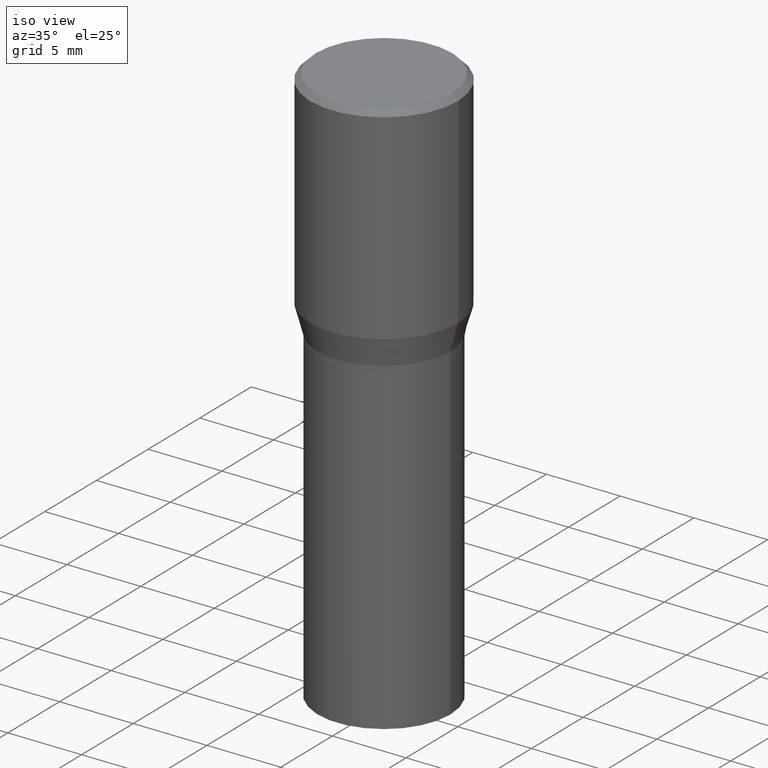
[diagram: clean part render]
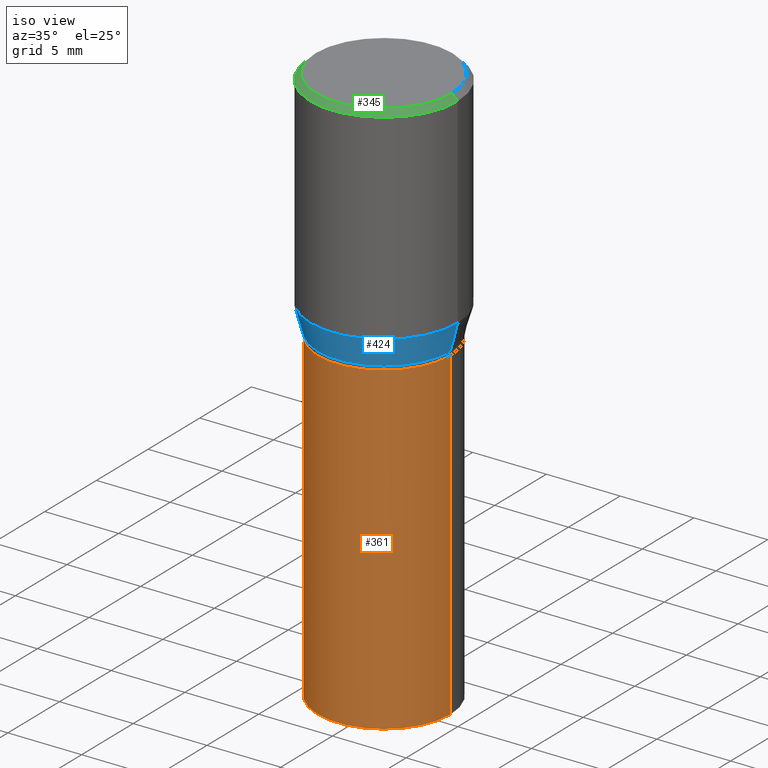
[diagram: same view with three faces highlighted in distinct colors, each labeled with its STEP entity id]
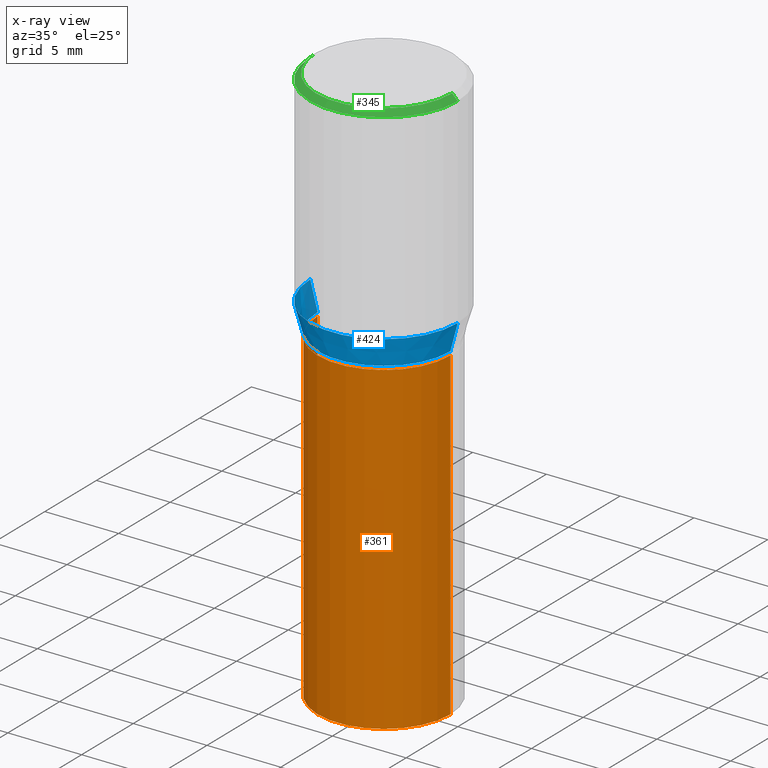
[diagram: x-ray of the same camera — body ghosted, the three highlighted faces saturated]
A machine part, iso view with three faces highlighted in distinct colors.
The next image is the same camera in x-ray (body ghosted, the three faces saturated) — at least one of them is partly hidden behind the body in this view.
Their STEP definitions:

[orange] entity #361 — the highlighted cylindrical surface (partial cylindrical patch) has radius 4.4996 mm, axis along (-0, 0, 1).
#10 = CARTESIAN_POINT ( 'NONE',  ( 0.000000000000000000, 0.000000000000000000, 0.000000000000000000 ) ) ;
#12 = ORIENTED_EDGE ( 'NONE', *, *, #145, .T. ) ;
#14 = DIRECTION ( 'NONE',  ( -2.445468806185136597E-29, 3.491481338843145583E-15, 1.000000000000000000 ) ) ;
#33 = EDGE_CURVE ( 'NONE', #161, #463, #259, .T. ) ;
#47 = CARTESIAN_POINT ( 'NONE',  ( 0.1771500000000000019, -6.474253846616840571E-15, -1.500000000000000222 ) ) ;
#56 = VERTEX_POINT ( 'NONE', #233 ) ;
#63 = LINE ( 'NONE', #318, #301 ) ;
#75 = AXIS2_PLACEMENT_3D ( 'NONE', #305, #271, #245 ) ;
#82 = LINE ( 'NONE', #193, #396 ) ;
#88 = DIRECTION ( 'NONE',  ( 1.000000000000000000, -6.982962677686266711E-15, 0.000000000000000000 ) ) ;
#94 = CYLINDRICAL_SURFACE ( 'NONE', #454, 0.1771500000000000019 ) ;
#120 = DIRECTION ( 'NONE',  ( -2.445468806185136877E-29, 3.491481338843145188E-15, 1.000000000000000000 ) ) ;
#125 = EDGE_LOOP ( 'NONE', ( #466, #263, #12, #428 ) ) ;
#139 = DIRECTION ( 'NONE',  ( -2.445468806185136877E-29, 3.491481338843145188E-15, 1.000000000000000000 ) ) ;
#145 = EDGE_CURVE ( 'NONE', #463, #341, #82, .T. ) ;
#159 = DIRECTION ( 'NONE',  ( -2.445468806185136597E-29, 3.491481338843145583E-15, 1.000000000000000000 ) ) ;
#161 = VERTEX_POINT ( 'NONE', #199 ) ;
#193 = CARTESIAN_POINT ( 'NONE',  ( 0.1771500000000000019, -1.237031838352122197E-15, 8.638147158322499960E-30 ) ) ;
#198 = CARTESIAN_POINT ( 'NONE',  ( 1.550182676240758652E-29, -2.213250020692670577E-15, -0.6339000000000001300 ) ) ;
#199 = CARTESIAN_POINT ( 'NONE',  ( -0.1771500000000000019, -2.466509558079677081E-15, -1.500000000000000222 ) ) ;
#233 = CARTESIAN_POINT ( 'NONE',  ( -0.1771500000000000019, -2.466509558079677081E-15, -0.6339000000000001300 ) ) ;
#245 = DIRECTION ( 'NONE',  ( 1.000000000000000000, -6.982962677686266711E-15, 0.000000000000000000 ) ) ;
#259 = CIRCLE ( 'NONE', #75, 0.1771500000000000019 ) ;
#263 = ORIENTED_EDGE ( 'NONE', *, *, #33, .T. ) ;
#267 = CIRCLE ( 'NONE', #377, 0.1771500000000000019 ) ;
#271 = DIRECTION ( 'NONE',  ( -2.445468806185136597E-29, 3.491481338843145583E-15, 1.000000000000000000 ) ) ;
#272 = EDGE_CURVE ( 'NONE', #161, #56, #63, .T. ) ;
#301 = VECTOR ( 'NONE', #139, 39.37007874015748143 ) ;
#305 = CARTESIAN_POINT ( 'NONE',  ( 3.668203209277704895E-29, -5.237222008264718177E-15, -1.500000000000000222 ) ) ;
#307 = DIRECTION ( 'NONE',  ( 1.000000000000000000, -6.982962677686266711E-15, 4.876176775795935793E-29 ) ) ;
#308 = EDGE_CURVE ( 'NONE', #56, #341, #267, .T. ) ;
#318 = CARTESIAN_POINT ( 'NONE',  ( -0.1771500000000000019, 1.258726456399017493E-15, -8.713893512386565325E-30 ) ) ;
#341 = VERTEX_POINT ( 'NONE', #353 ) ;
#346 = FACE_OUTER_BOUND ( 'NONE', #125, .T. ) ;
#353 = CARTESIAN_POINT ( 'NONE',  ( 0.1771500000000000019, -3.450281859044792971E-15, -0.6339000000000001300 ) ) ;
#361 = ADVANCED_FACE ( 'NONE', ( #346 ), #94, .T. ) ;
#377 = AXIS2_PLACEMENT_3D ( 'NONE', #198, #14, #88 ) ;
#396 = VECTOR ( 'NONE', #120, 39.37007874015748143 ) ;
#428 = ORIENTED_EDGE ( 'NONE', *, *, #308, .F. ) ;
#454 = AXIS2_PLACEMENT_3D ( 'NONE', #10, #159, #307 ) ;
#463 = VERTEX_POINT ( 'NONE', #47 ) ;
#466 = ORIENTED_EDGE ( 'NONE', *, *, #272, .F. ) ;

[blue] entity #424 — the highlighted conical surface has half-angle 15 deg.
#18 = DIRECTION ( 'NONE',  ( -2.445468806185136597E-29, 3.491481338843145583E-15, 1.000000000000000000 ) ) ;
#27 = LINE ( 'NONE', #457, #438 ) ;
#39 = CARTESIAN_POINT ( 'NONE',  ( 0.1771500000000001129, -3.415367045656361716E-15, -0.6239000000000001211 ) ) ;
#49 = ORIENTED_EDGE ( 'NONE', *, *, #192, .T. ) ;
#62 = ORIENTED_EDGE ( 'NONE', *, *, #427, .F. ) ;
#66 = DIRECTION ( 'NONE',  ( 0.2588190451025220717, 1.565188264969615854E-15, 0.9659258262890678681 ) ) ;
#67 = AXIS2_PLACEMENT_3D ( 'NONE', #302, #439, #124 ) ;
#73 = CARTESIAN_POINT ( 'NONE',  ( 1.525727988178907107E-29, -2.178335207304238928E-15, -0.6239000000000001211 ) ) ;
#80 = CONICAL_SURFACE ( 'NONE', #431, 0.1771500000000001129, 0.2617993877991508511 ) ;
#96 = LINE ( 'NONE', #415, #122 ) ;
#122 = VECTOR ( 'NONE', #66, 39.37007874015748854 ) ;
#124 = DIRECTION ( 'NONE',  ( 1.000000000000000000, -6.982962677686267499E-15, 0.000000000000000000 ) ) ;
#128 = ORIENTED_EDGE ( 'NONE', *, *, #395, .T. ) ;
#137 = DIRECTION ( 'NONE',  ( 1.000000000000000000, -6.982962677686265922E-15, 0.000000000000000000 ) ) ;
#143 = DIRECTION ( 'NONE',  ( -0.2588190451025220717, 5.211531920934554197E-15, 0.9659258262890678681 ) ) ;
#167 = EDGE_CURVE ( 'NONE', #348, #449, #461, .T. ) ;
#174 = DIRECTION ( 'NONE',  ( 1.000000000000000000, -6.982962677686265922E-15, 0.000000000000000000 ) ) ;
#186 = VERTEX_POINT ( 'NONE', #39 ) ;
#187 = CARTESIAN_POINT ( 'NONE',  ( 1.525727988178907107E-29, -2.178335207304238928E-15, -0.6239000000000001211 ) ) ;
#189 = CIRCLE ( 'NONE', #235, 0.1771500000000001129 ) ;
#192 = EDGE_CURVE ( 'NONE', #407, #186, #189, .T. ) ;
#235 = AXIS2_PLACEMENT_3D ( 'NONE', #187, #315, #137 ) ;
#242 = FACE_OUTER_BOUND ( 'NONE', #414, .T. ) ;
#293 = CARTESIAN_POINT ( 'NONE',  ( 0.1968500000000000527, -3.296232811127031185E-15, -0.5503785990908939274 ) ) ;
#302 = CARTESIAN_POINT ( 'NONE',  ( 1.345933695668656235E-29, -1.921636608024489183E-15, -0.5503785990908939274 ) ) ;
#315 = DIRECTION ( 'NONE',  ( -2.445468806185136597E-29, 3.491481338843145583E-15, 1.000000000000000000 ) ) ;
#348 = VERTEX_POINT ( 'NONE', #378 ) ;
#354 = ORIENTED_EDGE ( 'NONE', *, *, #167, .F. ) ;
#378 = CARTESIAN_POINT ( 'NONE',  ( -0.1968500000000000527, -5.229332326807317894E-16, -0.5503785990908939274 ) ) ;
#390 = CARTESIAN_POINT ( 'NONE',  ( -0.1771500000000001129, -7.212709917929761191E-16, -0.6239000000000001211 ) ) ;
#395 = EDGE_CURVE ( 'NONE', #186, #449, #96, .T. ) ;
#407 = VERTEX_POINT ( 'NONE', #390 ) ;
#414 = EDGE_LOOP ( 'NONE', ( #62, #49, #128, #354 ) ) ;
#415 = CARTESIAN_POINT ( 'NONE',  ( 0.1771500000000001129, -3.415367045656361716E-15, -0.6239000000000001211 ) ) ;
#424 = ADVANCED_FACE ( 'NONE', ( #242 ), #80, .T. ) ;
#427 = EDGE_CURVE ( 'NONE', #407, #348, #27, .T. ) ;
#431 = AXIS2_PLACEMENT_3D ( 'NONE', #73, #18, #174 ) ;
#438 = VECTOR ( 'NONE', #143, 39.37007874015748854 ) ;
#439 = DIRECTION ( 'NONE',  ( -2.445468806185136597E-29, 3.491481338843145583E-15, 1.000000000000000000 ) ) ;
#449 = VERTEX_POINT ( 'NONE', #293 ) ;
#457 = CARTESIAN_POINT ( 'NONE',  ( -0.1771500000000001129, -9.196087509052206461E-16, -0.6239000000000001211 ) ) ;
#461 = CIRCLE ( 'NONE', #67, 0.1968500000000000527 ) ;

[green] entity #345 — the highlighted conical surface has half-angle 45 deg.
#6 = ORIENTED_EDGE ( 'NONE', *, *, #158, .T. ) ;
#21 = CARTESIAN_POINT ( 'NONE',  ( 3.668203209277705088E-31, -5.237222008264718399E-17, -0.01499999999999999944 ) ) ;
#32 = LINE ( 'NONE', #180, #52 ) ;
#52 = VECTOR ( 'NONE', #223, 39.37007874015748143 ) ;
#60 = DIRECTION ( 'NONE',  ( -0.7071067811865479058, 2.468850131082261005E-15, -0.7071067811865471286 ) ) ;
#64 = EDGE_CURVE ( 'NONE', #324, #316, #32, .T. ) ;
#70 = CARTESIAN_POINT ( 'NONE',  ( -0.1818500000000000116, 1.296037872978570989E-15, -6.472253288878428014E-18 ) ) ;
#89 = EDGE_LOOP ( 'NONE', ( #275, #209, #134, #6 ) ) ;
#99 = CARTESIAN_POINT ( 'NONE',  ( 0.1818500000000000116, -1.325221405919363357E-15, -6.472253288860382051E-18 ) ) ;
#100 = CARTESIAN_POINT ( 'NONE',  ( 1.582769352365941312E-46, -2.259775157835388046E-32, -6.472253288869456262E-18 ) ) ;
#113 = VECTOR ( 'NONE', #60, 39.37007874015748143 ) ;
#132 = CARTESIAN_POINT ( 'NONE',  ( -0.1968500000000000250, 4.116989612901891144E-16, -0.01499999999999999944 ) ) ;
#134 = ORIENTED_EDGE ( 'NONE', *, *, #333, .T. ) ;
#156 = DIRECTION ( 'NONE',  ( 1.000000000000000000, -6.982962677686265922E-15, 0.000000000000000000 ) ) ;
#158 = EDGE_CURVE ( 'NONE', #261, #316, #331, .T. ) ;
#180 = CARTESIAN_POINT ( 'NONE',  ( 0.1968500000000000250, -1.402861250943973297E-15, -0.01499999999999999944 ) ) ;
#200 = CONICAL_SURFACE ( 'NONE', #332, 0.1968500000000000250, 0.7853981633974488341 ) ;
#209 = ORIENTED_EDGE ( 'NONE', *, *, #254, .F. ) ;
#212 = AXIS2_PLACEMENT_3D ( 'NONE', #268, #236, #156 ) ;
#223 = DIRECTION ( 'NONE',  ( 0.7071067811865479058, -7.319954787623257623E-15, -0.7071067811865471286 ) ) ;
#226 = AXIS2_PLACEMENT_3D ( 'NONE', #100, #442, #274 ) ;
#234 = DIRECTION ( 'NONE',  ( -1.000000000000000000, 6.982962677686265922E-15, 0.000000000000000000 ) ) ;
#236 = DIRECTION ( 'NONE',  ( -2.445468806185136597E-29, 3.491481338843145583E-15, 1.000000000000000000 ) ) ;
#247 = CARTESIAN_POINT ( 'NONE',  ( -0.1968500000000000250, 1.322223983019894529E-15, -0.01499999999999999944 ) ) ;
#254 = EDGE_CURVE ( 'NONE', #411, #324, #363, .T. ) ;
#261 = VERTEX_POINT ( 'NONE', #132 ) ;
#268 = CARTESIAN_POINT ( 'NONE',  ( 3.668203209277705088E-31, -5.237222008264718399E-17, -0.01499999999999999944 ) ) ;
#273 = LINE ( 'NONE', #247, #113 ) ;
#274 = DIRECTION ( 'NONE',  ( 1.000000000000000000, -6.982962677686266711E-15, 4.876336753188190607E-29 ) ) ;
#275 = ORIENTED_EDGE ( 'NONE', *, *, #64, .F. ) ;
#279 = FACE_OUTER_BOUND ( 'NONE', #89, .T. ) ;
#316 = VERTEX_POINT ( 'NONE', #384 ) ;
#324 = VERTEX_POINT ( 'NONE', #99 ) ;
#331 = CIRCLE ( 'NONE', #212, 0.1968500000000000250 ) ;
#332 = AXIS2_PLACEMENT_3D ( 'NONE', #21, #410, #234 ) ;
#333 = EDGE_CURVE ( 'NONE', #411, #261, #273, .T. ) ;
#345 = ADVANCED_FACE ( 'NONE', ( #279 ), #200, .T. ) ;
#363 = CIRCLE ( 'NONE', #226, 0.1818500000000000116 ) ;
#384 = CARTESIAN_POINT ( 'NONE',  ( 0.1968500000000000250, -1.426968423185188885E-15, -0.01499999999999999944 ) ) ;
#410 = DIRECTION ( 'NONE',  ( 2.445468806185136597E-29, -3.491481338843145583E-15, -1.000000000000000000 ) ) ;
#411 = VERTEX_POINT ( 'NONE', #70 ) ;
#442 = DIRECTION ( 'NONE',  ( -2.445468806185136597E-29, 3.491481338843145583E-15, 1.000000000000000000 ) ) ;